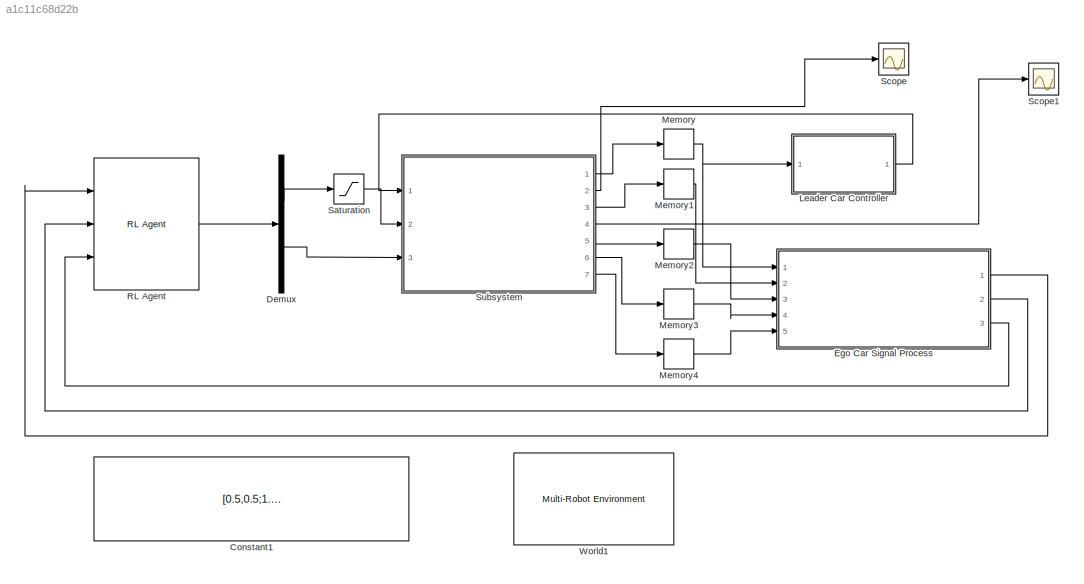
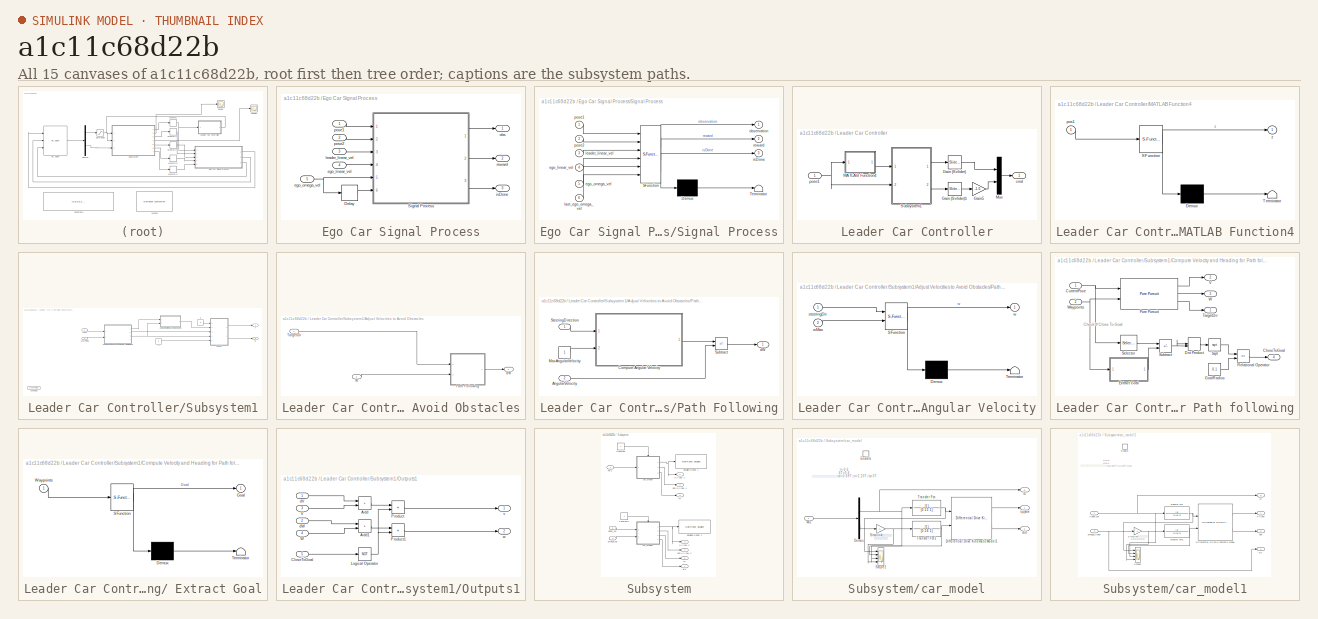
[diagram: thumbnail index - all 15 canvases of the model, root first then tree order]
MODEL slx_a1c11c68d22b
KIND model
CONFIG AbsTol = auto
CONFIG EnableMultiTasking = off
CONFIG FixedStep = 0.2
CONFIG InitFcn = % paremeters of pure persuit\ndesired_v_robot_1=0.2\ndesired_w_robot_1=4\ndesired_lookahead_robot_1=0.2\n\n% paremeters of recovery\nrecovery_w=0.5\n\nsampleTime = 0.05;\n\n% Robot parameters\nwheelRadius = 0.025;\nrobotRadius = 0.15;\n\n% Lidar parameters\nsensorOffset = [0,0];\nscanAngles = linspace(-pi/2,pi/2,9)';\nmaxRange = 5;\n\n%%%%%%\nks=-1;\n\n%初始位置\nx_1_0=1;\ny_1_0=0;\nyaw_1_0=0.0;\n\nx_2_0=0.6;\ny_2_0=0;\nyaw_2_0=0...<+64ch>
CONFIG MaxStep = auto
CONFIG MinStep = auto
CONFIG PreLoadFcn = % Simulation parameters\n%load exampleMap\n\n\n\n
CONFIG RelTol = 1e-3
CONFIG SampleTimeConstraint = Unconstrained
CONFIG SolverName = FixedStepAuto
CONFIG StartTime = 0.0
CONFIG StopTime = 120
BLOCK [Constant] Constant1
  Value = [0.5,0.5;1.5 0.5;1.5 1.5;0.5 1.5]
BLOCK [Demux] Demux
  Outputs = 2
  Ports = [1, 2]
BLOCK [SubSystem] Ego Car Signal Process
  Ports = [5, 3]
  RequestExecContextInheritance = off
BLOCK [Delay] Ego Car Signal Process/Delay
  DelayLength = 1
  InitialCondition = 0
  InputPortMap = u0
  Ports = [1, 1]
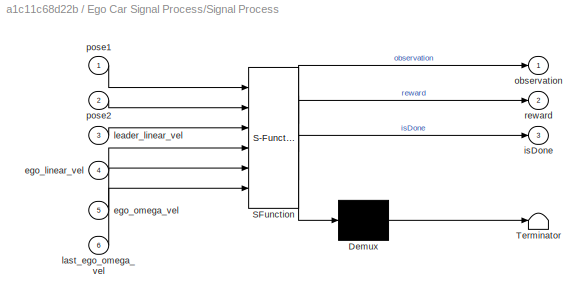
BLOCK [SubSystem] Ego Car Signal Process/Signal Process
  ErrorFcn = Stateflow.Translate.translate
  PermitHierarchicalResolution = ExplicitOnly
  Ports = [6, 3]
  RequestExecContextInheritance = off
  SFBlockType = MATLAB Function
  TreatAsAtomicUnit = on
BLOCK [Demux] Ego Car Signal Process/Signal Process/ Demux 
  Outputs = 1
  Ports = [1, 1]
BLOCK [S-Function] Ego Car Signal Process/Signal Process/ SFunction 
  EnableBusSupport = on
  FunctionName = sf_sfun
  PortCounts = [6 4]
  Ports = [6, 4]
  SFcnIsStateOwnerBlock = off
  SFunctionDeploymentMode = off
  Tag = Stateflow S-Function 1
BLOCK [Terminator] Ego Car Signal Process/Signal Process/ Terminator 
BLOCK [Inport] Ego Car Signal Process/Signal Process/ego_linear_vel
  Port = 4
BLOCK [Inport] Ego Car Signal Process/Signal Process/ego_omega_vel
  Port = 5
BLOCK [Outport] Ego Car Signal Process/Signal Process/isDone
  Port = 3
BLOCK [Inport] Ego Car Signal Process/Signal Process/last_ego_omega_vel
  Port = 6
BLOCK [Inport] Ego Car Signal Process/Signal Process/leader_linear_vel
  Port = 3
BLOCK [Outport] Ego Car Signal Process/Signal Process/observation
BLOCK [Inport] Ego Car Signal Process/Signal Process/pose1
BLOCK [Inport] Ego Car Signal Process/Signal Process/pose2
  Port = 2
BLOCK [Outport] Ego Car Signal Process/Signal Process/reward
  Port = 2
BLOCK [Inport] Ego Car Signal Process/ego_linear_vel
  Port = 4
BLOCK [Inport] Ego Car Signal Process/ego_omega_vel
  Port = 5
BLOCK [Outport] Ego Car Signal Process/isDone
  Port = 3
BLOCK [Inport] Ego Car Signal Process/leader_linear_vel
  Port = 3
BLOCK [Outport] Ego Car Signal Process/obs
BLOCK [Inport] Ego Car Signal Process/pose1
BLOCK [Inport] Ego Car Signal Process/pose2
  Port = 2
BLOCK [Outport] Ego Car Signal Process/reward
  Port = 2
BLOCK [SubSystem] Leader Car Controller
  Ports = [1, 1]
  RequestExecContextInheritance = off
BLOCK [Reference] Leader Car Controller/Gain (Svlider)  REF=simulink/Math
Operations/Slider
Gain
  Ports = [1, 1]
  SourceBlock = simulink/Math\nOperations/Slider\nGain
  SourceProductBaseCode = SL
  SourceType = Slider Gain
BLOCK [Reference] Leader Car Controller/Gain (Svlider)1  REF=simulink/Math
Operations/Slider
Gain
  Ports = [1, 1]
  SourceBlock = simulink/Math\nOperations/Slider\nGain
  SourceProductBaseCode = SL
  SourceType = Slider Gain
BLOCK [Gain] Leader Car Controller/Gain5
  Gain = -1.0
BLOCK [SubSystem] Leader Car Controller/MATLAB Function4
  ErrorFcn = Stateflow.Translate.translate
  PermitHierarchicalResolution = ExplicitOnly
  Ports = [1, 1]
  RequestExecContextInheritance = off
  SFBlockType = MATLAB Function
  TreatAsAtomicUnit = on
BLOCK [Demux] Leader Car Controller/MATLAB Function4/ Demux 
  Outputs = 1
  Ports = [1, 1]
BLOCK [S-Function] Leader Car Controller/MATLAB Function4/ SFunction 
  EnableBusSupport = on
  FunctionName = sf_sfun
  PortCounts = [1 2]
  Ports = [1, 2]
  SFcnIsStateOwnerBlock = off
  SFunctionDeploymentMode = off
  Tag = Stateflow S-Function 11
BLOCK [Terminator] Leader Car Controller/MATLAB Function4/ Terminator 
BLOCK [Inport] Leader Car Controller/MATLAB Function4/pos1
BLOCK [Outport] Leader Car Controller/MATLAB Function4/z
BLOCK [Mux] Leader Car Controller/Mux
  DisplayOption = bar
  Inputs = 2
  Ports = [2, 1]
BLOCK [SubSystem] Leader Car Controller/Subsystem1
  Ports = [2, 2]
  RequestExecContextInheritance = off
BLOCK [Constant] Leader Car Controller/Subsystem1/0
  Value = 0
BLOCK [Constant] Leader Car Controller/Subsystem1/1
  Value = 0
BLOCK [SubSystem] Leader Car Controller/Subsystem1/Adjust Velocities to Avoid Obstacles
  Ports = [2, 1]
  RequestExecContextInheritance = off
BLOCK [SubSystem] Leader Car Controller/Subsystem1/Adjust Velocities to Avoid Obstacles/Path Following
  Ports = [2, 1]
  RequestExecContextInheritance = off
  TreatAsAtomicUnit = on
BLOCK [Inport] Leader Car Controller/Subsystem1/Adjust Velocities to Avoid Obstacles/Path Following/AngularVelocity
  Port = 2
BLOCK [SubSystem] Leader Car Controller/Subsystem1/Adjust Velocities to Avoid Obstacles/Path Following/Compute Angular Velocity
  ErrorFcn = Stateflow.Translate.translate
  PermitHierarchicalResolution = ExplicitOnly
  Ports = [2, 1]
  RequestExecContextInheritance = off
  SFBlockType = MATLAB Function
  TreatAsAtomicUnit = on
BLOCK [Demux] Leader Car Controller/Subsystem1/Adjust Velocities to Avoid Obstacles/Path Following/Compute Angular Velocity/ Demux 
  Outputs = 1
  Ports = [1, 1]
BLOCK [S-Function] Leader Car Controller/Subsystem1/Adjust Velocities to Avoid Obstacles/Path Following/Compute Angular Velocity/ SFunction 
  EnableBusSupport = on
  FunctionName = sf_sfun
  PortCounts = [2 2]
  Ports = [2, 2]
  SFcnIsStateOwnerBlock = off
  SFunctionDeploymentMode = off
  Tag = Stateflow S-Function 6
BLOCK [Terminator] Leader Car Controller/Subsystem1/Adjust Velocities to Avoid Obstacles/Path Following/Compute Angular Velocity/ Terminator 
BLOCK [Inport] Leader Car Controller/Subsystem1/Adjust Velocities to Avoid Obstacles/Path Following/Compute Angular Velocity/steeringDir
BLOCK [Outport] Leader Car Controller/Subsystem1/Adjust Velocities to Avoid Obstacles/Path Following/Compute Angular Velocity/w
  VectorParamsAs1DForOutWhenUnconnected = off
BLOCK [Inport] Leader Car Controller/Subsystem1/Adjust Velocities to Avoid Obstacles/Path Following/Compute Angular Velocity/wMax
  Port = 2
BLOCK [Constant] Leader Car Controller/Subsystem1/Adjust Velocities to Avoid Obstacles/Path Following/MaxAngularVelocity
BLOCK [Inport] Leader Car Controller/Subsystem1/Adjust Velocities to Avoid Obstacles/Path Following/SteeringDirection
BLOCK [Sum] Leader Car Controller/Subsystem1/Adjust Velocities to Avoid Obstacles/Path Following/Subtract
  IconShape = rectangular
  Inputs = +-
  Ports = [2, 1]
BLOCK [Outport] Leader Car Controller/Subsystem1/Adjust Velocities to Avoid Obstacles/Path Following/dW
  VectorParamsAs1DForOutWhenUnconnected = off
BLOCK [Inport] Leader Car Controller/Subsystem1/Adjust Velocities to Avoid Obstacles/TargetDir
BLOCK [Inport] Leader Car Controller/Subsystem1/Adjust Velocities to Avoid Obstacles/W
  Port = 2
BLOCK [Outport] Leader Car Controller/Subsystem1/Adjust Velocities to Avoid Obstacles/dW
  VectorParamsAs1DForOutWhenUnconnected = off
BLOCK [SubSystem] Leader Car Controller/Subsystem1/Compute Velocity and Heading for Path following
  Ports = [2, 4]
  RequestExecContextInheritance = off
BLOCK [SubSystem] Leader Car Controller/Subsystem1/Compute Velocity and Heading for Path following/ Extract Goal
  ErrorFcn = Stateflow.Translate.translate
  PermitHierarchicalResolution = ExplicitOnly
  Ports = [1, 1]
  RequestExecContextInheritance = off
  SFBlockType = MATLAB Function
  TreatAsAtomicUnit = on
BLOCK [Demux] Leader Car Controller/Subsystem1/Compute Velocity and Heading for Path following/ Extract Goal/ Demux 
  Outputs = 1
  Ports = [1, 1]
BLOCK [S-Function] Leader Car Controller/Subsystem1/Compute Velocity and Heading for Path following/ Extract Goal/ SFunction 
  EnableBusSupport = on
  FunctionName = sf_sfun
  PortCounts = [1 2]
  Ports = [1, 2]
  SFcnIsStateOwnerBlock = off
  SFunctionDeploymentMode = off
  Tag = Stateflow S-Function 7
BLOCK [Terminator] Leader Car Controller/Subsystem1/Compute Velocity and Heading for Path following/ Extract Goal/ Terminator 
BLOCK [Outport] Leader Car Controller/Subsystem1/Compute Velocity and Heading for Path following/ Extract Goal/Goal
  VectorParamsAs1DForOutWhenUnconnected = off
BLOCK [Inport] Leader Car Controller/Subsystem1/Compute Velocity and Heading for Path following/ Extract Goal/Waypoints
BLOCK [Outport] Leader Car Controller/Subsystem1/Compute Velocity and Heading for Path following/CloseToGoal
  Port = 4
  VectorParamsAs1DForOutWhenUnconnected = off
BLOCK [Inport] Leader Car Controller/Subsystem1/Compute Velocity and Heading for Path following/CurrentPose
BLOCK [DotProduct] Leader Car Controller/Subsystem1/Compute Velocity and Heading for Path following/Dot Product
  OutDataTypeStr = Inherit: Inherit via internal rule
BLOCK [Constant] Leader Car Controller/Subsystem1/Compute Velocity and Heading for Path following/GoalRadius
  Value = 0.1
BLOCK [Reference] Leader Car Controller/Subsystem1/Compute Velocity and Heading for Path following/Pure Pursuit  REF=robotalgslib/Pure Pursuit
  Ports = [2, 3]
  SourceBlock = robotalgslib/Pure Pursuit
  SourceProductBaseCode = NV,RO
  SourceType = nav.slalgs.internal.PurePursuit
BLOCK [RelationalOperator] Leader Car Controller/Subsystem1/Compute Velocity and Heading for Path following/Relational Operator
  InputSameDT = off
  Operator = <=
  OutDataTypeStr = boolean
  Ports = [2, 1]
  RndMeth = Simplest
BLOCK [Selector] Leader Car Controller/Subsystem1/Compute Velocity and Heading for Path following/Selector
  IndexOptions = Index vector (dialog)
  Indices = [1 2]
  InputPortWidth = 3
  OutputSizes = 1
  Ports = [1, 1]
BLOCK [Sqrt] Leader Car Controller/Subsystem1/Compute Velocity and Heading for Path following/Sqrt
BLOCK [Sum] Leader Car Controller/Subsystem1/Compute Velocity and Heading for Path following/Subtract
  IconShape = rectangular
  Inputs = +-
  Ports = [2, 1]
BLOCK [Outport] Leader Car Controller/Subsystem1/Compute Velocity and Heading for Path following/TargetDir
  VectorParamsAs1DForOutWhenUnconnected = off
BLOCK [Outport] Leader Car Controller/Subsystem1/Compute Velocity and Heading for Path following/V
  Port = 2
  VectorParamsAs1DForOutWhenUnconnected = off
BLOCK [Outport] Leader Car Controller/Subsystem1/Compute Velocity and Heading for Path following/W
  Port = 3
  VectorParamsAs1DForOutWhenUnconnected = off
BLOCK [Inport] Leader Car Controller/Subsystem1/Compute Velocity and Heading for Path following/Waypoints
  Port = 2
BLOCK [Constant] Leader Car Controller/Subsystem1/Constant1
  Value = scanAngles
BLOCK [SubSystem] Leader Car Controller/Subsystem1/Outputs1
  Ports = [5, 2]
  RequestExecContextInheritance = off
BLOCK [Sum] Leader Car Controller/Subsystem1/Outputs1/Add
  IconShape = rectangular
  Ports = [2, 1]
BLOCK [Sum] Leader Car Controller/Subsystem1/Outputs1/Add1
  IconShape = rectangular
  Ports = [2, 1]
BLOCK [Inport] Leader Car Controller/Subsystem1/Outputs1/CloseToGoal
  Port = 5
BLOCK [Logic] Leader Car Controller/Subsystem1/Outputs1/Logical Operator
  AllPortsSameDT = off
  Operator = NOT
  OutDataTypeStr = boolean
  Ports = [1, 1]
BLOCK [Product] Leader Car Controller/Subsystem1/Outputs1/Product
  Ports = [2, 1]
BLOCK [Product] Leader Car Controller/Subsystem1/Outputs1/Product1
  Ports = [2, 1]
BLOCK [Inport] Leader Car Controller/Subsystem1/Outputs1/V
  Port = 3
BLOCK [Inport] Leader Car Controller/Subsystem1/Outputs1/W
  Port = 4
BLOCK [Inport] Leader Car Controller/Subsystem1/Outputs1/dV
BLOCK [Inport] Leader Car Controller/Subsystem1/Outputs1/dW
  Port = 2
BLOCK [Outport] Leader Car Controller/Subsystem1/Outputs1/v
BLOCK [Outport] Leader Car Controller/Subsystem1/Outputs1/w
  Port = 2
BLOCK [Inport] Leader Car Controller/Subsystem1/Pose
  Port = 2
BLOCK [Inport] Leader Car Controller/Subsystem1/WayPoints
BLOCK [Outport] Leader Car Controller/Subsystem1/v
BLOCK [Outport] Leader Car Controller/Subsystem1/w
  Port = 2
BLOCK [Outport] Leader Car Controller/cmd
BLOCK [Inport] Leader Car Controller/pose1
BLOCK [Memory] Memory
  InitialCondition = [x_1_0,y_1_0,yaw_1_0]
BLOCK [Memory] Memory1
  InitialCondition = [x_2_0,y_2_0,yaw_2_0]
BLOCK [Memory] Memory2
  InitialCondition = 0.2
BLOCK [Memory] Memory3
  InitialCondition = 0.2
BLOCK [Memory] Memory4
BLOCK [Reference] RL Agent  REF=rllib/RL Agent
  Ports = [3, 1]
  SourceBlock = rllib/RL Agent
  SourceProductBaseCode = RL
  SourceType = RL Agent
BLOCK [Saturate] Saturation
  LowerLimit = 0.1
BLOCK [Scope] Scope
  Floating = off
  NumInputPorts = 1
  Ports = [1]
  ScopeSpecificationString = Simulink.scopes.TimeScopeBlockCfg('CurrentConfiguration', extmgr.ConfigurationSet(extmgr.Configuration('Core','General UI',true),extmgr.Configuration('Core','Source UI',true),extmgr.Configuration('Sources','WiredSimulink',true,'DataLoggingVariableName','ScopeData1'),extmgr.Configuration('Visuals','Time Domain',true),extmgr.Configuration('Tools','Plot Navigation',true),extmgr.Configuration('Tools',...<+40ch>
BLOCK [Scope] Scope1
  Floating = off
  NumInputPorts = 1
  Ports = [1]
  ScopeSpecificationString = Simulink.scopes.TimeScopeBlockCfg('CurrentConfiguration', extmgr.ConfigurationSet(extmgr.Configuration('Core','General UI',true),extmgr.Configuration('Core','Source UI',true),extmgr.Configuration('Sources','WiredSimulink',true,'DataLoggingVariableName','ScopeData2'),extmgr.Configuration('Visuals','Time Domain',true),extmgr.Configuration('Tools','Plot Navigation',true),extmgr.Configuration('Tools',...<+40ch>
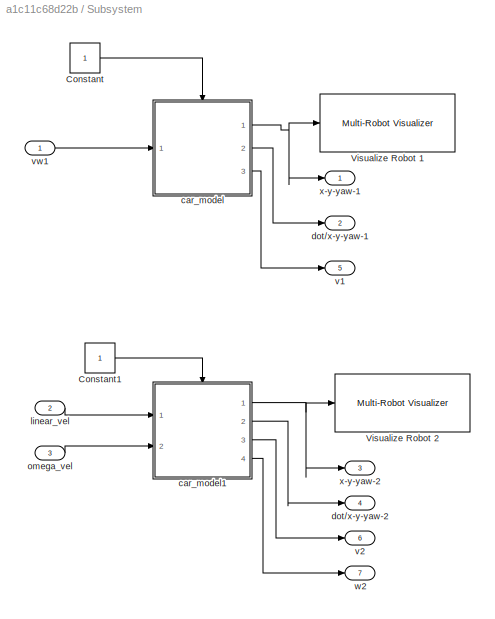
BLOCK [SubSystem] Subsystem
  Ports = [3, 7]
  RequestExecContextInheritance = off
BLOCK [Constant] Subsystem/Constant
BLOCK [Constant] Subsystem/Constant1
BLOCK [Reference] Subsystem/Visualize Robot 1  REF=mobileRoboticsLib/Environments/Multi-Robot Visualizer
  Ports = [1]
  SourceBlock = mobileRoboticsLib/Environments/Multi-Robot Visualizer
  SourceProductName = Mobile Robotics Simulation Toolbox
  SourceType = Multi-Robot Visualizer
BLOCK [Reference] Subsystem/Visualize Robot 2  REF=mobileRoboticsLib/Environments/Multi-Robot Visualizer
  Ports = [1]
  SourceBlock = mobileRoboticsLib/Environments/Multi-Robot Visualizer
  SourceProductName = Mobile Robotics Simulation Toolbox
  SourceType = Multi-Robot Visualizer
BLOCK [SubSystem] Subsystem/car_model
  Ports = [1, 3, 1]
  RequestExecContextInheritance = off
BLOCK [Demux] Subsystem/car_model/Demux
  Outputs = 2
  Ports = [1, 2]
BLOCK [Reference] Subsystem/car_model/Differential Drive Kinematic Model1  REF=robotmobilelib/Differential Drive Kinematic Model
  Ports = [2, 2]
  SourceBlock = robotmobilelib/Differential Drive Kinematic Model
  SourceProductBaseCode = RO
  SourceType = Differential Drive Kinematic Model
BLOCK [EnablePort] Subsystem/car_model/Enable
  Ports = [0, 1]
  ShowOutputPort = on
BLOCK [Scope] Subsystem/car_model/Scope2
  Floating = off
  NumInputPorts = 4
  Ports = [4]
  ScopeSpecificationString = Simulink.scopes.TimeScopeBlockCfg('CurrentConfiguration', extmgr.ConfigurationSet(extmgr.Configuration('Core','General UI',true),extmgr.Configuration('Core','Source UI',true),extmgr.Configuration('Sources','WiredSimulink',true,'DataLoggingVariableName','ScopeData2'),extmgr.Configuration('Visuals','Time Domain',true,'SerializedDisplays',{struct('MinYLimReal','-1.00000','MaxYLimReal','1.00000','YLab...<+1448ch>
BLOCK [Gain] Subsystem/car_model/Simulink顺时针为正 小车逆时针为正
  Gain = -1
BLOCK [TransferFcn] Subsystem/car_model/Transfer Fcn
  Denominator = [0.15 1]
BLOCK [TransferFcn] Subsystem/car_model/Transfer Fcn1
  Denominator = [0.16 1]
BLOCK [Outport] Subsystem/car_model/dot
  Port = 2
BLOCK [Outport] Subsystem/car_model/v1
  Port = 3
BLOCK [Inport] Subsystem/car_model/vw1
BLOCK [Outport] Subsystem/car_model/x-y-yaw
BLOCK [SubSystem] Subsystem/car_model1
  Ports = [2, 4, 1]
  RequestExecContextInheritance = off
BLOCK [Reference] Subsystem/car_model1/Differential Drive Kinematic Model  REF=robotmobilelib/Differential Drive Kinematic Model
  Ports = [2, 2]
  SourceBlock = robotmobilelib/Differential Drive Kinematic Model
  SourceProductBaseCode = RO
  SourceType = Differential Drive Kinematic Model
BLOCK [EnablePort] Subsystem/car_model1/Enable
  Ports = [0, 1]
  ShowOutputPort = on
BLOCK [Scope] Subsystem/car_model1/Scope2
  Floating = off
  NumInputPorts = 4
  Ports = [4]
  ScopeSpecificationString = Simulink.scopes.TimeScopeBlockCfg('CurrentConfiguration', extmgr.ConfigurationSet(extmgr.Configuration('Core','General UI',true),extmgr.Configuration('Core','Source UI',true),extmgr.Configuration('Sources','WiredSimulink',true,'DataLoggingVariableName','ScopeData2'),extmgr.Configuration('Visuals','Time Domain',true,'SerializedDisplays',{struct('MinYLimReal','-1.25','MaxYLimReal','1.25','YLabelReal...<+1426ch>
BLOCK [Gain] Subsystem/car_model1/Simulink顺时针为正 小车逆时针为正
  Gain = -1
BLOCK [TransferFcn] Subsystem/car_model1/Transfer Fcn
  Denominator = [0.15 1]
BLOCK [TransferFcn] Subsystem/car_model1/Transfer Fcn1
  Denominator = [0.16 1]
BLOCK [Outport] Subsystem/car_model1/dot
  Port = 2
BLOCK [Inport] Subsystem/car_model1/linear_vel
BLOCK [Inport] Subsystem/car_model1/omega_linear
  Port = 2
BLOCK [Outport] Subsystem/car_model1/v2
  Port = 3
BLOCK [Outport] Subsystem/car_model1/w2
  Port = 4
BLOCK [Outport] Subsystem/car_model1/x-y-yaw
BLOCK [Outport] Subsystem/dot//x-y-yaw-1
  Port = 2
BLOCK [Outport] Subsystem/dot//x-y-yaw-2
  Port = 4
BLOCK [Inport] Subsystem/linear_vel
  Port = 2
BLOCK [Inport] Subsystem/omega_vel
  Port = 3
BLOCK [Outport] Subsystem/v1
  Port = 5
BLOCK [Outport] Subsystem/v2
  Port = 6
BLOCK [Inport] Subsystem/vw1
BLOCK [Outport] Subsystem/w2
  Port = 7
BLOCK [Outport] Subsystem/x-y-yaw-1
BLOCK [Outport] Subsystem/x-y-yaw-2
  Port = 3
BLOCK [Reference] World1  REF=mobileRoboticsLib/Environments/Multi-Robot Environment
  Ports = []
  SourceBlock = mobileRoboticsLib/Environments/Multi-Robot Environment
  SourceProductName = Mobile Robotics Simulation Toolbox
  SourceType = Multi-Robot Environment
ANNOTATION Leader Car Controller/Subsystem1/Compute Velocity and Heading for Path following: Check If Close To Goal
ANNOTATION Subsystem/car_model: tr=0.6 4T=0.6 一阶系统的动态性能指标为：td=0.69T，tr=2.20T，ts=3T
ANNOTATION Subsystem/car_model1: tr=0.6 4T=0.6 一阶系统的动态性能指标为：td=0.69T，tr=2.20T，ts=3T
LINE Demux:1 -> Saturation:1
LINE Demux:2 -> Subsystem:3
LINE Ego Car Signal Process/Delay:1 -> Ego Car Signal Process/Signal Process:6
LINE Ego Car Signal Process/Signal Process:1 -> Ego Car Signal Process/obs:1
LINE Ego Car Signal Process/Signal Process:2 -> Ego Car Signal Process/reward:1
LINE Ego Car Signal Process/Signal Process:3 -> Ego Car Signal Process/isDone:1
LINE Ego Car Signal Process/ego_linear_vel:1 -> Ego Car Signal Process/Signal Process:4
NET Ego Car Signal Process/ego_omega_vel:1 -> Ego Car Signal Process/Delay:1, Ego Car Signal Process/Signal Process:5
LINE Ego Car Signal Process/leader_linear_vel:1 -> Ego Car Signal Process/Signal Process:3
LINE Ego Car Signal Process/pose1:1 -> Ego Car Signal Process/Signal Process:1
LINE Ego Car Signal Process/pose2:1 -> Ego Car Signal Process/Signal Process:2
LINE Ego Car Signal Process:1 -> RL Agent:1
LINE Ego Car Signal Process:2 -> RL Agent:2
LINE Ego Car Signal Process:3 -> RL Agent:3
LINE Leader Car Controller/Gain (Svlider)1:1 -> Leader Car Controller/Gain5:1
LINE Leader Car Controller/Gain (Svlider):1 -> Leader Car Controller/Mux:1
LINE Leader Car Controller/Gain5:1 -> Leader Car Controller/Mux:2
LINE Leader Car Controller/MATLAB Function4:1 -> Leader Car Controller/Subsystem1:1
LINE Leader Car Controller/Mux:1 -> Leader Car Controller/cmd:1
LINE Leader Car Controller/Subsystem1/0:1 -> Leader Car Controller/Subsystem1/Outputs1:1
LINE Leader Car Controller/Subsystem1/1:1 -> Leader Car Controller/Subsystem1/Outputs1:5
LINE Leader Car Controller/Subsystem1/Adjust Velocities to Avoid Obstacles/Path Following/AngularVelocity:1 -> Leader Car Controller/Subsystem1/Adjust Velocities to Avoid Obstacles/Path Following/Subtract:2
LINE Leader Car Controller/Subsystem1/Adjust Velocities to Avoid Obstacles/Path Following/Compute Angular Velocity:1 -> Leader Car Controller/Subsystem1/Adjust Velocities to Avoid Obstacles/Path Following/Subtract:1
LINE Leader Car Controller/Subsystem1/Adjust Velocities to Avoid Obstacles/Path Following/MaxAngularVelocity:1 -> Leader Car Controller/Subsystem1/Adjust Velocities to Avoid Obstacles/Path Following/Compute Angular Velocity:2
LINE Leader Car Controller/Subsystem1/Adjust Velocities to Avoid Obstacles/Path Following/SteeringDirection:1 -> Leader Car Controller/Subsystem1/Adjust Velocities to Avoid Obstacles/Path Following/Compute Angular Velocity:1
LINE Leader Car Controller/Subsystem1/Adjust Velocities to Avoid Obstacles/Path Following/Subtract:1 -> Leader Car Controller/Subsystem1/Adjust Velocities to Avoid Obstacles/Path Following/dW:1
LINE Leader Car Controller/Subsystem1/Adjust Velocities to Avoid Obstacles/Path Following:1 -> Leader Car Controller/Subsystem1/Adjust Velocities to Avoid Obstacles/dW:1
LINE Leader Car Controller/Subsystem1/Adjust Velocities to Avoid Obstacles/TargetDir:1 -> Leader Car Controller/Subsystem1/Adjust Velocities to Avoid Obstacles/Path Following:1
LINE Leader Car Controller/Subsystem1/Adjust Velocities to Avoid Obstacles/W:1 -> Leader Car Controller/Subsystem1/Adjust Velocities to Avoid Obstacles/Path Following:2
LINE Leader Car Controller/Subsystem1/Adjust Velocities to Avoid Obstacles:1 -> Leader Car Controller/Subsystem1/Outputs1:2
LINE Leader Car Controller/Subsystem1/Compute Velocity and Heading for Path following/ Extract Goal:1 -> Leader Car Controller/Subsystem1/Compute Velocity and Heading for Path following/Subtract:2
NET Leader Car Controller/Subsystem1/Compute Velocity and Heading for Path following/CurrentPose:1 -> Leader Car Controller/Subsystem1/Compute Velocity and Heading for Path following/Pure Pursuit:1, Leader Car Controller/Subsystem1/Compute Velocity and Heading for Path following/Selector:1
LINE Leader Car Controller/Subsystem1/Compute Velocity and Heading for Path following/Dot Product:1 -> Leader Car Controller/Subsystem1/Compute Velocity and Heading for Path following/Sqrt:1
LINE Leader Car Controller/Subsystem1/Compute Velocity and Heading for Path following/GoalRadius:1 -> Leader Car Controller/Subsystem1/Compute Velocity and Heading for Path following/Relational Operator:2
LINE Leader Car Controller/Subsystem1/Compute Velocity and Heading for Path following/Pure Pursuit:1 -> Leader Car Controller/Subsystem1/Compute Velocity and Heading for Path following/V:1
LINE Leader Car Controller/Subsystem1/Compute Velocity and Heading for Path following/Pure Pursuit:2 -> Leader Car Controller/Subsystem1/Compute Velocity and Heading for Path following/W:1
LINE Leader Car Controller/Subsystem1/Compute Velocity and Heading for Path following/Pure Pursuit:3 -> Leader Car Controller/Subsystem1/Compute Velocity and Heading for Path following/TargetDir:1
LINE Leader Car Controller/Subsystem1/Compute Velocity and Heading for Path following/Relational Operator:1 -> Leader Car Controller/Subsystem1/Compute Velocity and Heading for Path following/CloseToGoal:1
LINE Leader Car Controller/Subsystem1/Compute Velocity and Heading for Path following/Selector:1 -> Leader Car Controller/Subsystem1/Compute Velocity and Heading for Path following/Subtract:1
LINE Leader Car Controller/Subsystem1/Compute Velocity and Heading for Path following/Sqrt:1 -> Leader Car Controller/Subsystem1/Compute Velocity and Heading for Path following/Relational Operator:1
NET Leader Car Controller/Subsystem1/Compute Velocity and Heading for Path following/Subtract:1 -> Leader Car Controller/Subsystem1/Compute Velocity and Heading for Path following/Dot Product:1, Leader Car Controller/Subsystem1/Compute Velocity and Heading for Path following/Dot Product:2
NET Leader Car Controller/Subsystem1/Compute Velocity and Heading for Path following/Waypoints:1 -> Leader Car Controller/Subsystem1/Compute Velocity and Heading for Path following/ Extract Goal:1, Leader Car Controller/Subsystem1/Compute Velocity and Heading for Path following/Pure Pursuit:2
LINE Leader Car Controller/Subsystem1/Compute Velocity and Heading for Path following:1 -> Leader Car Controller/Subsystem1/Adjust Velocities to Avoid Obstacles:1
LINE Leader Car Controller/Subsystem1/Compute Velocity and Heading for Path following:2 -> Leader Car Controller/Subsystem1/Outputs1:3
NET Leader Car Controller/Subsystem1/Compute Velocity and Heading for Path following:3 -> Leader Car Controller/Subsystem1/Adjust Velocities to Avoid Obstacles:2, Leader Car Controller/Subsystem1/Outputs1:4
LINE Leader Car Controller/Subsystem1/Outputs1/Add1:1 -> Leader Car Controller/Subsystem1/Outputs1/Product1:1
LINE Leader Car Controller/Subsystem1/Outputs1/Add:1 -> Leader Car Controller/Subsystem1/Outputs1/Product:1
LINE Leader Car Controller/Subsystem1/Outputs1/CloseToGoal:1 -> Leader Car Controller/Subsystem1/Outputs1/Logical Operator:1
NET Leader Car Controller/Subsystem1/Outputs1/Logical Operator:1 -> Leader Car Controller/Subsystem1/Outputs1/Product1:2, Leader Car Controller/Subsystem1/Outputs1/Product:2
LINE Leader Car Controller/Subsystem1/Outputs1/Product1:1 -> Leader Car Controller/Subsystem1/Outputs1/w:1
LINE Leader Car Controller/Subsystem1/Outputs1/Product:1 -> Leader Car Controller/Subsystem1/Outputs1/v:1
LINE Leader Car Controller/Subsystem1/Outputs1/V:1 -> Leader Car Controller/Subsystem1/Outputs1/Add:2
LINE Leader Car Controller/Subsystem1/Outputs1/W:1 -> Leader Car Controller/Subsystem1/Outputs1/Add1:2
LINE Leader Car Controller/Subsystem1/Outputs1/dV:1 -> Leader Car Controller/Subsystem1/Outputs1/Add:1
LINE Leader Car Controller/Subsystem1/Outputs1/dW:1 -> Leader Car Controller/Subsystem1/Outputs1/Add1:1
LINE Leader Car Controller/Subsystem1/Outputs1:1 -> Leader Car Controller/Subsystem1/v:1
LINE Leader Car Controller/Subsystem1/Outputs1:2 -> Leader Car Controller/Subsystem1/w:1
LINE Leader Car Controller/Subsystem1/Pose:1 -> Leader Car Controller/Subsystem1/Compute Velocity and Heading for Path following:1
LINE Leader Car Controller/Subsystem1/WayPoints:1 -> Leader Car Controller/Subsystem1/Compute Velocity and Heading for Path following:2
LINE Leader Car Controller/Subsystem1:1 -> Leader Car Controller/Gain (Svlider):1
LINE Leader Car Controller/Subsystem1:2 -> Leader Car Controller/Gain (Svlider)1:1
NET Leader Car Controller/pose1:1 -> Leader Car Controller/MATLAB Function4:1, Leader Car Controller/Subsystem1:2
LINE Leader Car Controller:1 -> Subsystem:1
LINE Memory1:1 -> Ego Car Signal Process:2
LINE Memory2:1 -> Ego Car Signal Process:3
LINE Memory3:1 -> Ego Car Signal Process:4
LINE Memory4:1 -> Ego Car Signal Process:5
NET Memory:1 -> Ego Car Signal Process:1, Leader Car Controller:1
LINE RL Agent:1 -> Demux:1
LINE Saturation:1 -> Subsystem:2
LINE Subsystem/Constant1:1 -> Subsystem/car_model1:enable
LINE Subsystem/Constant:1 -> Subsystem/car_model:enable
NET Subsystem/car_model/Demux:1 -> Subsystem/car_model/Scope2:3, Subsystem/car_model/Transfer Fcn:1, Subsystem/car_model/v1:1
LINE Subsystem/car_model/Demux:2 -> Subsystem/car_model/Simulink顺时针为正 小车逆时针为正:1
LINE Subsystem/car_model/Differential Drive Kinematic Model1:1 -> Subsystem/car_model/x-y-yaw:1
LINE Subsystem/car_model/Differential Drive Kinematic Model1:2 -> Subsystem/car_model/dot:1
NET Subsystem/car_model/Simulink顺时针为正 小车逆时针为正:1 -> Subsystem/car_model/Scope2:4, Subsystem/car_model/Transfer Fcn1:1
NET Subsystem/car_model/Transfer Fcn1:1 -> Subsystem/car_model/Differential Drive Kinematic Model1:2, Subsystem/car_model/Scope2:2
NET Subsystem/car_model/Transfer Fcn:1 -> Subsystem/car_model/Differential Drive Kinematic Model1:1, Subsystem/car_model/Scope2:1
LINE Subsystem/car_model/vw1:1 -> Subsystem/car_model/Demux:1
LINE Subsystem/car_model1/Differential Drive Kinematic Model:1 -> Subsystem/car_model1/x-y-yaw:1
LINE Subsystem/car_model1/Differential Drive Kinematic Model:2 -> Subsystem/car_model1/dot:1
NET Subsystem/car_model1/Simulink顺时针为正 小车逆时针为正:1 -> Subsystem/car_model1/Scope2:4, Subsystem/car_model1/Transfer Fcn1:1
NET Subsystem/car_model1/Transfer Fcn1:1 -> Subsystem/car_model1/Differential Drive Kinematic Model:2, Subsystem/car_model1/Scope2:2
NET Subsystem/car_model1/Transfer Fcn:1 -> Subsystem/car_model1/Differential Drive Kinematic Model:1, Subsystem/car_model1/Scope2:1
NET Subsystem/car_model1/linear_vel:1 -> Subsystem/car_model1/Scope2:3, Subsystem/car_model1/Transfer Fcn:1, Subsystem/car_model1/v2:1
NET Subsystem/car_model1/omega_linear:1 -> Subsystem/car_model1/Simulink顺时针为正 小车逆时针为正:1, Subsystem/car_model1/w2:1
NET Subsystem/car_model1:1 -> Subsystem/Visualize Robot 2:1, Subsystem/x-y-yaw-2:1
LINE Subsystem/car_model1:2 -> Subsystem/dot//x-y-yaw-2:1
LINE Subsystem/car_model1:3 -> Subsystem/v2:1
LINE Subsystem/car_model1:4 -> Subsystem/w2:1
NET Subsystem/car_model:1 -> Subsystem/Visualize Robot 1:1, Subsystem/x-y-yaw-1:1
LINE Subsystem/car_model:2 -> Subsystem/dot//x-y-yaw-1:1
LINE Subsystem/car_model:3 -> Subsystem/v1:1
LINE Subsystem/linear_vel:1 -> Subsystem/car_model1:1
LINE Subsystem/omega_vel:1 -> Subsystem/car_model1:2
LINE Subsystem/vw1:1 -> Subsystem/car_model:1
LINE Subsystem:1 -> Memory:1
LINE Subsystem:2 -> Scope:1
LINE Subsystem:3 -> Memory1:1
LINE Subsystem:4 -> Scope1:1
LINE Subsystem:5 -> Memory2:1
LINE Subsystem:6 -> Memory3:1
LINE Subsystem:7 -> Memory4:1
note: NET lines group one-source signal fan-out (src -> all destinations, sorted); 1:1 wires keep LINE
CHART Ego Car Signal Process/Signal Process states=1 transitions=1
  STATE_LABEL 'eML_blk_kernel()'
  STATE_LABEL 'SCRIPT:\nfunction [observation, reward, isDone] = ...\n    car2(pose1,pose2,leader_linear_vel, ego_linear_vel, ego_omega_vel, last_ego_omega_vel)\n\n\npersistent sim_step  yaw_delta lateral_rel_dist\n\nif isempty(sim_step)\n    sim_step = 0;\nend\n\nif isempty(yaw_delta)\n    yaw_delta = 0.0;\nend\n\nif isempty(lateral_rel_dist)\n    lateral_rel_dist = 0.0;\nend\n\nx1=pose1(1);\ny1=pose1(2);\nyaw1=pose1(3);\n\nx2=pose2(...<+3608ch>'
CHART Leader Car Controller/Subsystem1/Adjust Velocities to Avoid Obstacles/Path Following/Compute Angular Velocity states=1 transitions=1
  STATE_LABEL 'eML_blk_kernel()'
  STATE_LABEL "SCRIPT:\nfunction w = exampleHelperComputeAngularVelocity(steeringDir, wMax)\n%EXAMPLEHELPERCOMPUTEANGULARVELOCITY Compute angular velocity\n%   W = exampleHelperComputeAngularVelocity(STEERINGDIR)\n%   returns the angular velocity W for a differential drive robot in radians\n%   per second for a given steering direction STEERINGDIR in the robot's\n%   coordinate frame in radians.\n%\n%   W = exampleHelpe...<+1444ch>"
CHART Leader Car Controller/Subsystem1/Compute Velocity and Heading for Path following/ Extract Goal states=1 transitions=1
  STATE_LABEL 'eML_blk_kernel()'
  STATE_LABEL 'SCRIPT:\nfunction Goal = extractGoal(Waypoints)\n%#codegen\nb = isnan(Waypoints);\n[rows,~] = find(b);\nridx = setdiff(1:size(Waypoints,1), sort(rows));\nGoal = [Waypoints(ridx(end), 1) Waypoints(ridx(end), 2)];'
CHART Leader Car Controller/MATLAB Function4 states=1 transitions=1
  STATE_LABEL 'eML_blk_kernel()'
  STATE_LABEL "SCRIPT:\nfunction z = plot_a_square(pos1)\n% \n% persistent Waypoints idx\n% if isempty(Waypoints)\n%     Waypoints=[0.2,0.2;1.8 0.2;1.8 1.8;0.2 1.8];\n%     idx=0;\n% end\n% if idx==0\n%     %初始化\n%     [~,idx]=max([norm(Waypoints(1,:)-pos1(1:2)'),norm(Waypoints(2,:)-pos1(1:2)'),norm(Waypoints(3,:)-pos1(1:2)'),norm(Waypoints(4,:)-pos1(1:2)')]);\n% end\n% \n% if norm([Waypoints(idx,:)-pos1(1:2)'])<0.25\n%     i...<+1289ch>"
CHART  states=0 transitions=0
CHART  states=0 transitions=0
CHART  states=0 transitions=0
CHART  states=0 transitions=0
